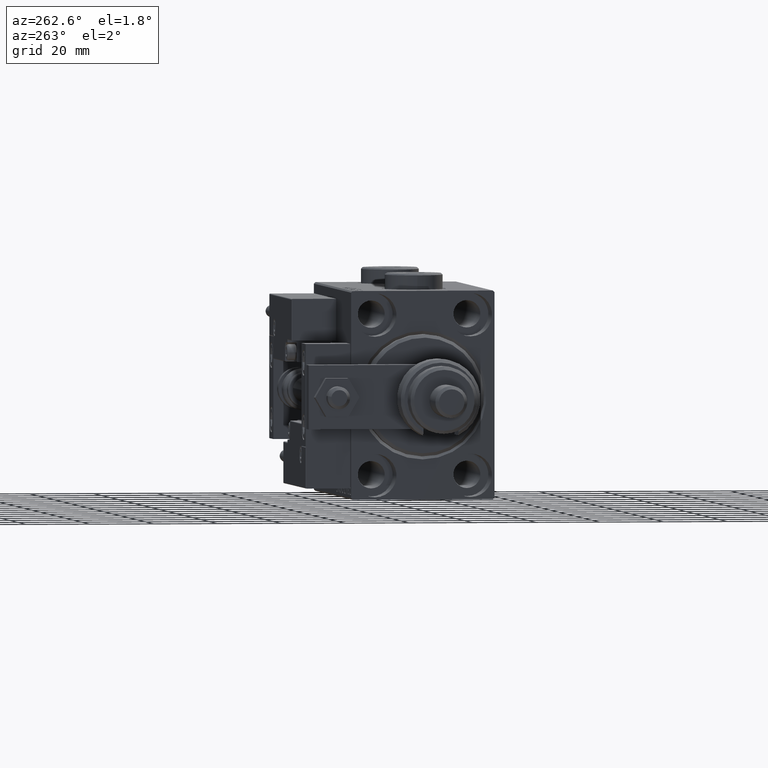
[diagram: clean part render]
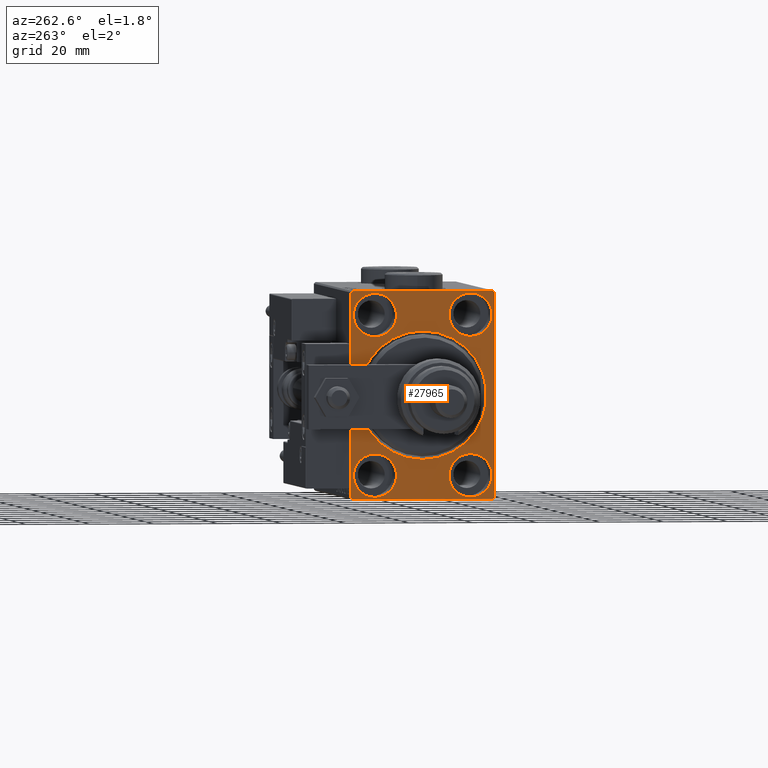
[diagram: same view with one face highlighted and labeled with its STEP entity id]
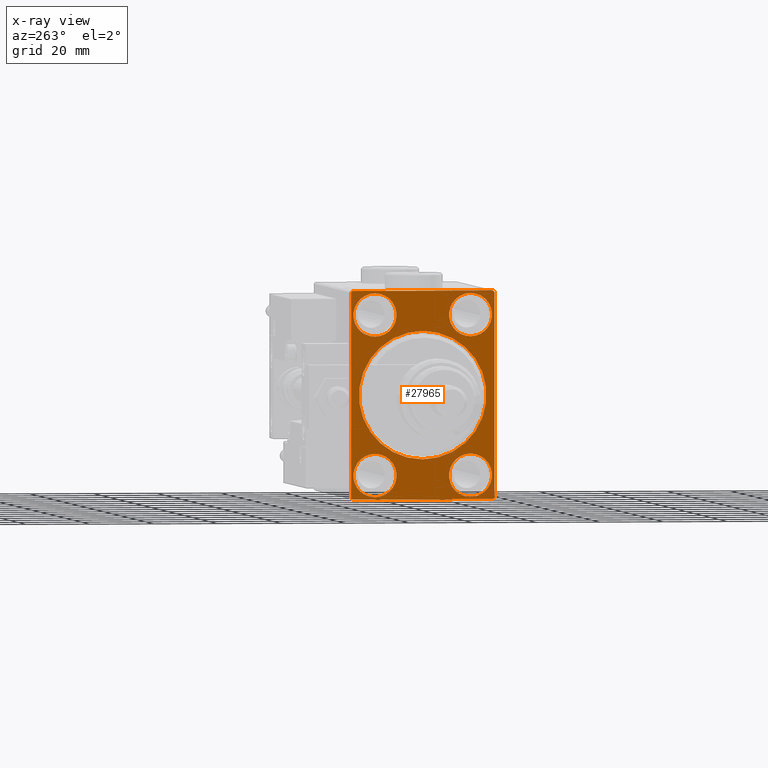
[diagram: x-ray of the same camera — body ghosted, the highlighted face saturated]
A machine part, auxiliary view. The second image highlights one B-rep face of the part: STEP entity #27965.
The next image is the same camera in x-ray: the body ghosted, the highlighted face saturated — about 0% of this face is hidden behind the body in this view.
In plain terms, the highlighted planar face has unit normal (1, 0, 0).
Its self-contained STEP definition (entity closure, byte-faithful):
#404 = EDGE_CURVE ( 'NONE', #13005, #1565, #7818, .T. ) ;
#557 = ORIENTED_EDGE ( 'NONE', *, *, #19828, .T. ) ;
#984 = EDGE_CURVE ( 'NONE', #38962, #41740, #27995, .T. ) ;
#1116 = AXIS2_PLACEMENT_3D ( 'NONE', #27716, #44487, #19177 ) ;
#1234 = DIRECTION ( 'NONE',  ( -1.000000000000000000, 0.000000000000000000, 0.000000000000000000 ) ) ;
#1565 = VERTEX_POINT ( 'NONE', #10607 ) ;
#1648 = AXIS2_PLACEMENT_3D ( 'NONE', #15638, #52764, #28585 ) ;
#1709 = CARTESIAN_POINT ( 'NONE',  ( 0.000000000000000000, 2.449293598294706907E-15, -20.00000000000000355 ) ) ;
#1865 = FACE_BOUND ( 'NONE', #41506, .T. ) ;
#2050 = CARTESIAN_POINT ( 'NONE',  ( 0.000000000000000000, 15.00000000000000355, 25.00000000000000000 ) ) ;
#2328 = VERTEX_POINT ( 'NONE', #6215 ) ;
#2490 = DIRECTION ( 'NONE',  ( -1.000000000000000000, 0.000000000000000000, 0.000000000000000000 ) ) ;
#2577 = DIRECTION ( 'NONE',  ( 0.000000000000000000, 0.000000000000000000, -1.000000000000000000 ) ) ;
#2941 = EDGE_CURVE ( 'NONE', #23413, #48329, #45655, .T. ) ;
#3023 = CIRCLE ( 'NONE', #13554, 20.00000000000000355 ) ;
#3484 = ORIENTED_EDGE ( 'NONE', *, *, #46665, .F. ) ;
#3553 = CARTESIAN_POINT ( 'NONE',  ( 0.000000000000000000, -15.00000000000000355, -25.00000000000000000 ) ) ;
#3571 = EDGE_CURVE ( 'NONE', #15968, #27322, #10181, .T. ) ;
#3793 = VECTOR ( 'NONE', #2577, 1000.000000000000000 ) ;
#4350 = VECTOR ( 'NONE', #47129, 999.9999999999998863 ) ;
#4527 = LINE ( 'NONE', #12790, #4350 ) ;
#4568 = CARTESIAN_POINT ( 'NONE',  ( 0.000000000000000000, -22.50000000000000711, -32.50000000000000711 ) ) ;
#5352 = AXIS2_PLACEMENT_3D ( 'NONE', #9785, #35663, #26559 ) ;
#6004 = DIRECTION ( 'NONE',  ( 0.000000000000000000, 0.000000000000000000, 1.000000000000000000 ) ) ;
#6091 = EDGE_CURVE ( 'NONE', #41938, #48148, #4527, .T. ) ;
#6215 = CARTESIAN_POINT ( 'NONE',  ( 0.000000000000000000, -22.50000000000000711, -31.99999999999999289 ) ) ;
#6391 = CARTESIAN_POINT ( 'NONE',  ( 0.000000000000000000, 22.49999999999999289, 32.50000000000000000 ) ) ;
#6539 = FACE_BOUND ( 'NONE', #14820, .T. ) ;
#6541 = LINE ( 'NONE', #40655, #44264 ) ;
#7605 = CARTESIAN_POINT ( 'NONE',  ( 0.000000000000000000, 15.00000000000000355, 31.75000000000000000 ) ) ;
#7818 = CIRCLE ( 'NONE', #23589, 6.749999999999999112 ) ;
#8347 = VERTEX_POINT ( 'NONE', #39822 ) ;
#8423 = AXIS2_PLACEMENT_3D ( 'NONE', #3553, #49483, #41510 ) ;
#8674 = AXIS2_PLACEMENT_3D ( 'NONE', #37983, #50337, #46218 ) ;
#8933 = EDGE_CURVE ( 'NONE', #38821, #17725, #39613, .T. ) ;
#9053 = CARTESIAN_POINT ( 'NONE',  ( 0.000000000000000000, -14.99999999999999645, 25.00000000000000000 ) ) ;
#9273 = EDGE_LOOP ( 'NONE', ( #49851, #48967 ) ) ;
#9785 = CARTESIAN_POINT ( 'NONE',  ( 0.000000000000000000, 0.000000000000000000, 0.000000000000000000 ) ) ;
#9910 = CARTESIAN_POINT ( 'NONE',  ( 0.000000000000000000, -14.99999999999999645, 31.75000000000000000 ) ) ;
#10062 = VERTEX_POINT ( 'NONE', #15028 ) ;
#10112 = FACE_BOUND ( 'NONE', #46724, .T. ) ;
#10181 = LINE ( 'NONE', #14577, #50045 ) ;
#10607 = CARTESIAN_POINT ( 'NONE',  ( 0.000000000000000000, -15.00000000000000355, -31.75000000000000000 ) ) ;
#10938 = FACE_BOUND ( 'NONE', #25894, .T. ) ;
#12790 = CARTESIAN_POINT ( 'NONE',  ( 0.000000000000000000, -22.50000000000000711, 31.99999999999999289 ) ) ;
#13005 = VERTEX_POINT ( 'NONE', #49404 ) ;
#13554 = AXIS2_PLACEMENT_3D ( 'NONE', #33605, #38812, #17103 ) ;
#14055 = AXIS2_PLACEMENT_3D ( 'NONE', #2050, #1234, #18003 ) ;
#14577 = CARTESIAN_POINT ( 'NONE',  ( 0.000000000000000000, 22.50000000000000000, -32.50000000000000711 ) ) ;
#14820 = EDGE_LOOP ( 'NONE', ( #24854, #48273 ) ) ;
#14902 = DIRECTION ( 'NONE',  ( 0.000000000000000000, -1.000000000000000000, -1.541976423090495387E-16 ) ) ;
#15028 = CARTESIAN_POINT ( 'NONE',  ( 0.000000000000000000, -14.99999999999999645, 18.25000000000000355 ) ) ;
#15411 = DIRECTION ( 'NONE',  ( 0.000000000000000000, 0.000000000000000000, 1.000000000000000000 ) ) ;
#15638 = CARTESIAN_POINT ( 'NONE',  ( 0.000000000000000000, 14.99999999999999645, -25.00000000000000000 ) ) ;
#15829 = CARTESIAN_POINT ( 'NONE',  ( 0.000000000000000000, 21.99999999999999289, 32.50000000000000000 ) ) ;
#15968 = VERTEX_POINT ( 'NONE', #27460 ) ;
#16333 = VERTEX_POINT ( 'NONE', #15829 ) ;
#17103 = DIRECTION ( 'NONE',  ( 0.000000000000000000, 0.000000000000000000, -1.000000000000000000 ) ) ;
#17394 = CIRCLE ( 'NONE', #49896, 6.749999999999999112 ) ;
#17725 = VERTEX_POINT ( 'NONE', #1709 ) ;
#17844 = DIRECTION ( 'NONE',  ( -1.000000000000000000, 0.000000000000000000, 0.000000000000000000 ) ) ;
#18003 = DIRECTION ( 'NONE',  ( 0.000000000000000000, 0.000000000000000000, 1.000000000000000000 ) ) ;
#18102 = DIRECTION ( 'NONE',  ( 0.000000000000000000, 0.000000000000000000, 1.000000000000000000 ) ) ;
#18280 = ORIENTED_EDGE ( 'NONE', *, *, #29265, .F. ) ;
#18521 = DIRECTION ( 'NONE',  ( 0.000000000000000000, -0.7071067811865524577, -0.7071067811865426878 ) ) ;
#18611 = CARTESIAN_POINT ( 'NONE',  ( 0.000000000000000000, 15.00000000000000355, 18.25000000000000355 ) ) ;
#18739 = EDGE_CURVE ( 'NONE', #16333, #48148, #31413, .T. ) ;
#19177 = DIRECTION ( 'NONE',  ( 0.000000000000000000, 0.000000000000000000, -1.000000000000000000 ) ) ;
#19368 = EDGE_CURVE ( 'NONE', #8347, #2328, #6541, .T. ) ;
#19828 = EDGE_CURVE ( 'NONE', #17725, #38821, #3023, .T. ) ;
#20464 = ORIENTED_EDGE ( 'NONE', *, *, #47599, .F. ) ;
#20747 = EDGE_CURVE ( 'NONE', #15968, #48499, #29816, .T. ) ;
#22099 = LINE ( 'NONE', #38370, #39233 ) ;
#22113 = ORIENTED_EDGE ( 'NONE', *, *, #20747, .T. ) ;
#22786 = ORIENTED_EDGE ( 'NONE', *, *, #18739, .F. ) ;
#23150 = EDGE_CURVE ( 'NONE', #1565, #13005, #44421, .T. ) ;
#23315 = DIRECTION ( 'NONE',  ( -0.000000000000000000, -0.7071067811865279218, 0.7071067811865671127 ) ) ;
#23413 = VERTEX_POINT ( 'NONE', #18611 ) ;
#23589 = AXIS2_PLACEMENT_3D ( 'NONE', #48539, #28207, #27657 ) ;
#24854 = ORIENTED_EDGE ( 'NONE', *, *, #984, .F. ) ;
#25410 = ORIENTED_EDGE ( 'NONE', *, *, #19368, .T. ) ;
#25680 = CARTESIAN_POINT ( 'NONE',  ( 0.000000000000000000, 22.50000000000000000, -32.00000000000002132 ) ) ;
#25894 = EDGE_LOOP ( 'NONE', ( #50870, #34906 ) ) ;
#26559 = DIRECTION ( 'NONE',  ( 0.000000000000000000, 0.000000000000000000, -1.000000000000000000 ) ) ;
#27322 = VERTEX_POINT ( 'NONE', #50368 ) ;
#27460 = CARTESIAN_POINT ( 'NONE',  ( 0.000000000000000000, 22.50000000000000000, -32.00000000000002132 ) ) ;
#27573 = VECTOR ( 'NONE', #14902, 1000.000000000000000 ) ;
#27657 = DIRECTION ( 'NONE',  ( 0.000000000000000000, 0.000000000000000000, 1.000000000000000000 ) ) ;
#27716 = CARTESIAN_POINT ( 'NONE',  ( 0.000000000000000000, 0.000000000000000000, 0.000000000000000000 ) ) ;
#27965 = ADVANCED_FACE ( 'NONE', ( #1865, #6539, #10112, #48599, #10938, #52457 ), #48882, .F. ) ;
#27995 = CIRCLE ( 'NONE', #35016, 6.749999999999999112 ) ;
#28196 = EDGE_CURVE ( 'NONE', #8347, #48499, #46898, .T. ) ;
#28207 = DIRECTION ( 'NONE',  ( -1.000000000000000000, 0.000000000000000000, 0.000000000000000000 ) ) ;
#28585 = DIRECTION ( 'NONE',  ( 0.000000000000000000, 0.000000000000000000, 1.000000000000000000 ) ) ;
#29265 = EDGE_CURVE ( 'NONE', #41938, #2328, #36973, .T. ) ;
#29559 = DIRECTION ( 'NONE',  ( -0.000000000000000000, 0.7071067811865328068, -0.7071067811865622277 ) ) ;
#29598 = DIRECTION ( 'NONE',  ( 0.000000000000000000, 1.000000000000000000, 0.000000000000000000 ) ) ;
#29816 = LINE ( 'NONE', #25680, #49615 ) ;
#30781 = ORIENTED_EDGE ( 'NONE', *, *, #8933, .T. ) ;
#31351 = DIRECTION ( 'NONE',  ( 0.000000000000000000, -1.067522139062650425E-16, 1.000000000000000000 ) ) ;
#31383 = CARTESIAN_POINT ( 'NONE',  ( 0.000000000000000000, 14.99999999999999645, -31.75000000000000000 ) ) ;
#31413 = LINE ( 'NONE', #6391, #27573 ) ;
#32353 = CARTESIAN_POINT ( 'NONE',  ( 0.000000000000000000, -21.99999999999998579, 32.49999999999999289 ) ) ;
#33605 = CARTESIAN_POINT ( 'NONE',  ( 0.000000000000000000, 0.000000000000000000, 0.000000000000000000 ) ) ;
#34168 = ORIENTED_EDGE ( 'NONE', *, *, #28196, .F. ) ;
#34906 = ORIENTED_EDGE ( 'NONE', *, *, #23150, .F. ) ;
#34927 = VERTEX_POINT ( 'NONE', #9910 ) ;
#35016 = AXIS2_PLACEMENT_3D ( 'NONE', #40185, #2490, #15411 ) ;
#35170 = CIRCLE ( 'NONE', #14055, 6.749999999999999112 ) ;
#35663 = DIRECTION ( 'NONE',  ( 1.000000000000000000, 0.000000000000000000, 0.000000000000000000 ) ) ;
#36890 = AXIS2_PLACEMENT_3D ( 'NONE', #44215, #39021, #18102 ) ;
#36973 = LINE ( 'NONE', #40543, #3793 ) ;
#37983 = CARTESIAN_POINT ( 'NONE',  ( 0.000000000000000000, -14.99999999999999645, 25.00000000000000000 ) ) ;
#38370 = CARTESIAN_POINT ( 'NONE',  ( 0.000000000000000000, 21.99999999999999289, 32.50000000000000000 ) ) ;
#38812 = DIRECTION ( 'NONE',  ( 1.000000000000000000, 0.000000000000000000, 0.000000000000000000 ) ) ;
#38821 = VERTEX_POINT ( 'NONE', #45788 ) ;
#38962 = VERTEX_POINT ( 'NONE', #42737 ) ;
#39021 = DIRECTION ( 'NONE',  ( -1.000000000000000000, 0.000000000000000000, 0.000000000000000000 ) ) ;
#39233 = VECTOR ( 'NONE', #29559, 1000.000000000000000 ) ;
#39426 = CIRCLE ( 'NONE', #8674, 6.749999999999999112 ) ;
#39613 = CIRCLE ( 'NONE', #5352, 20.00000000000000355 ) ;
#39661 = EDGE_LOOP ( 'NONE', ( #18280, #52433, #22786, #40619, #43486, #22113, #34168, #25410 ) ) ;
#39822 = CARTESIAN_POINT ( 'NONE',  ( 0.000000000000000000, -22.00000000000002132, -32.50000000000000711 ) ) ;
#40185 = CARTESIAN_POINT ( 'NONE',  ( 0.000000000000000000, 14.99999999999999645, -25.00000000000000000 ) ) ;
#40287 = CARTESIAN_POINT ( 'NONE',  ( 0.000000000000000000, 21.99999999999999289, -32.50000000000000711 ) ) ;
#40302 = CIRCLE ( 'NONE', #1648, 6.749999999999999112 ) ;
#40318 = EDGE_CURVE ( 'NONE', #16333, #27322, #22099, .T. ) ;
#40543 = CARTESIAN_POINT ( 'NONE',  ( 0.000000000000000000, -22.50000000000000711, 32.49999999999999289 ) ) ;
#40619 = ORIENTED_EDGE ( 'NONE', *, *, #40318, .T. ) ;
#40655 = CARTESIAN_POINT ( 'NONE',  ( 0.000000000000000000, -22.00000000000002132, -32.50000000000000711 ) ) ;
#41506 = EDGE_LOOP ( 'NONE', ( #30781, #557 ) ) ;
#41510 = DIRECTION ( 'NONE',  ( 0.000000000000000000, 0.000000000000000000, 1.000000000000000000 ) ) ;
#41740 = VERTEX_POINT ( 'NONE', #31383 ) ;
#41938 = VERTEX_POINT ( 'NONE', #48300 ) ;
#42737 = CARTESIAN_POINT ( 'NONE',  ( 0.000000000000000000, 14.99999999999999645, -18.25000000000000355 ) ) ;
#43486 = ORIENTED_EDGE ( 'NONE', *, *, #3571, .F. ) ;
#44215 = CARTESIAN_POINT ( 'NONE',  ( 0.000000000000000000, 15.00000000000000355, 25.00000000000000000 ) ) ;
#44264 = VECTOR ( 'NONE', #23315, 1000.000000000000000 ) ;
#44421 = CIRCLE ( 'NONE', #8423, 6.749999999999999112 ) ;
#44487 = DIRECTION ( 'NONE',  ( 1.000000000000000000, 0.000000000000000000, 0.000000000000000000 ) ) ;
#45655 = CIRCLE ( 'NONE', #36890, 6.749999999999999112 ) ;
#45788 = CARTESIAN_POINT ( 'NONE',  ( 0.000000000000000000, 0.000000000000000000, 20.00000000000000355 ) ) ;
#46218 = DIRECTION ( 'NONE',  ( 0.000000000000000000, 0.000000000000000000, 1.000000000000000000 ) ) ;
#46665 = EDGE_CURVE ( 'NONE', #10062, #34927, #17394, .T. ) ;
#46724 = EDGE_LOOP ( 'NONE', ( #20464, #3484 ) ) ;
#46898 = LINE ( 'NONE', #4568, #47623 ) ;
#47129 = DIRECTION ( 'NONE',  ( -0.000000000000000000, 0.7071067811865525687, 0.7071067811865425767 ) ) ;
#47599 = EDGE_CURVE ( 'NONE', #34927, #10062, #39426, .T. ) ;
#47623 = VECTOR ( 'NONE', #29598, 1000.000000000000000 ) ;
#47856 = EDGE_CURVE ( 'NONE', #41740, #38962, #40302, .T. ) ;
#48148 = VERTEX_POINT ( 'NONE', #32353 ) ;
#48273 = ORIENTED_EDGE ( 'NONE', *, *, #47856, .F. ) ;
#48300 = CARTESIAN_POINT ( 'NONE',  ( 0.000000000000000000, -22.50000000000000711, 31.99999999999999289 ) ) ;
#48329 = VERTEX_POINT ( 'NONE', #7605 ) ;
#48499 = VERTEX_POINT ( 'NONE', #40287 ) ;
#48539 = CARTESIAN_POINT ( 'NONE',  ( 0.000000000000000000, -15.00000000000000355, -25.00000000000000000 ) ) ;
#48599 = FACE_BOUND ( 'NONE', #9273, .T. ) ;
#48882 = PLANE ( 'NONE',  #1116 ) ;
#48967 = ORIENTED_EDGE ( 'NONE', *, *, #2941, .F. ) ;
#49404 = CARTESIAN_POINT ( 'NONE',  ( 0.000000000000000000, -15.00000000000000355, -18.25000000000000355 ) ) ;
#49483 = DIRECTION ( 'NONE',  ( -1.000000000000000000, 0.000000000000000000, 0.000000000000000000 ) ) ;
#49615 = VECTOR ( 'NONE', #18521, 1000.000000000000000 ) ;
#49851 = ORIENTED_EDGE ( 'NONE', *, *, #53209, .F. ) ;
#49896 = AXIS2_PLACEMENT_3D ( 'NONE', #9053, #17844, #6004 ) ;
#50045 = VECTOR ( 'NONE', #31351, 1000.000000000000000 ) ;
#50337 = DIRECTION ( 'NONE',  ( -1.000000000000000000, 0.000000000000000000, 0.000000000000000000 ) ) ;
#50368 = CARTESIAN_POINT ( 'NONE',  ( 0.000000000000000000, 22.49999999999999289, 31.99999999999997868 ) ) ;
#50870 = ORIENTED_EDGE ( 'NONE', *, *, #404, .F. ) ;
#52433 = ORIENTED_EDGE ( 'NONE', *, *, #6091, .T. ) ;
#52457 = FACE_OUTER_BOUND ( 'NONE', #39661, .T. ) ;
#52764 = DIRECTION ( 'NONE',  ( -1.000000000000000000, 0.000000000000000000, 0.000000000000000000 ) ) ;
#53209 = EDGE_CURVE ( 'NONE', #48329, #23413, #35170, .T. ) ;